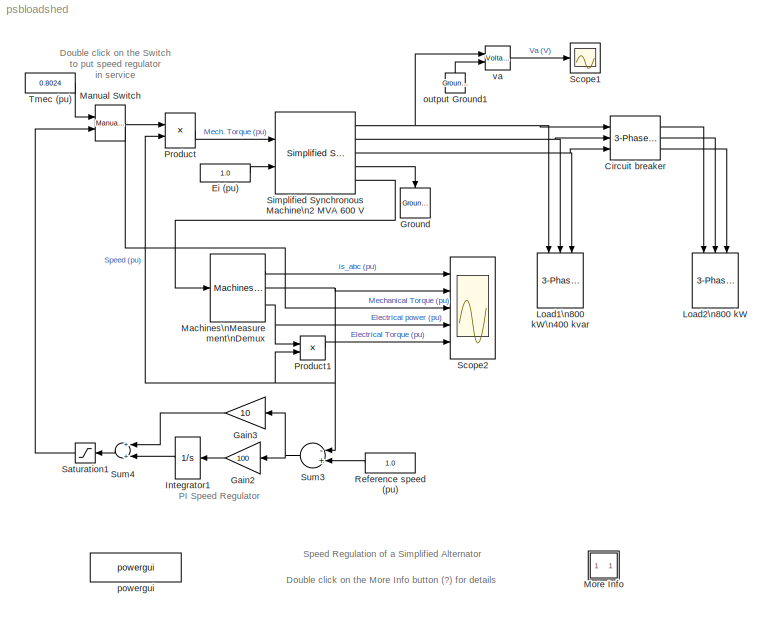
MODEL psbloadshed
KIND model
CONFIG InitFcn = powericon('psbinitsys',bdroot);
BLOCK [Reference] Circuit breaker  REF=powerlib2/Elements/3-Phase Breaker
  Cp = 0
  Ports = [3, 3]
  Ron = 1e-4
  Rp = inf
  SourceBlock = powerlib2/Elements/3-Phase Breaker
  SourceType = Three-Phase Breaker
  Ts = 0
  comext = off
  init_states = closed
  mesure = None
  sa = on
  sb = on
  sc = on
  sw_times = [ 0.2 0.7*100 ]
BLOCK [Constant] Ei (pu)
  Value = 1.0
BLOCK [Gain] Gain2
  Gain = 100
BLOCK [Gain] Gain3
  Gain = 10
BLOCK [Reference] Ground  REF=powerlib2/Connectors/Ground (input)
  Ports = [1]
  SourceBlock = powerlib2/Connectors/Ground (input)
  SourceType = Ground
  Tag = PoWeRsYsTeMbLoCk
BLOCK [Integrator] Integrator1
  InitialCondition = 0.8024
  LimitOutput = on
  LowerSaturationLimit = 0
  Ports = [1, 1]
  UpperSaturationLimit = 1
  ZeroCross = off
BLOCK [Reference] Load1\n800 kW\n400 kvar  REF=powerlib2/Elements/3-Phase\nParallel RLC Load
  P3 = 800e3
  Ports = [3]
  QC3 = 0
  QL3 = 400e3
  SourceBlock = powerlib2/Elements/3-Phase\nParallel RLC Load
  SourceType = 3-phase parallel RLC load
  Vpp = 600
  fn = 60
BLOCK [Reference] Load2\n800 kW  REF=powerlib2/Elements/3-Phase\nParallel RLC Load
  P3 = 800e3
  Ports = [3]
  QC3 = 0
  QL3 = 0
  SourceBlock = powerlib2/Elements/3-Phase\nParallel RLC Load
  SourceType = 3-phase parallel RLC load
  Vpp = 600
  fn = 60
BLOCK [Reference] Machines\nMeasurement\nDemux  REF=powerlib2/Machines/Machines\nMeasurement\nDemux
  Ports = [1, 3]
  SourceBlock = powerlib2/Machines/Machines\nMeasurement\nDemux
  SourceType = Machine measurements
  asm1 = on
  asm10 = on
  asm11 = on
  asm2 = on
  asm3 = on
  asm4 = on
  asm5 = on
  asm6 = on
  asm7 = on
  asm8 = on
  asm9 = on
  lastType = 1
  machType = Simplified synchronous
  pmsm1 = on
  pmsm2 = on
  pmsm3 = on
  pmsm4 = on
  pmsm5 = on
  pmsm6 = on
  sm1 = on
  sm10 = on
  sm11 = on
  sm115 = off
  sm12 = off
  sm13 = off
  sm14 = off
  sm2 = on
  sm3 = on
  sm4 = on
  sm5 = on
  sm6 = on
  sm7 = on
  sm8 = on
  sm9 = on
  ssm1 = on
  ssm2 = off
  ssm3 = off
  ssm4 = off
  ssm5 = on
  ssm6 = on
BLOCK [Reference] Manual Switch  REF=simulink/Signal\nRouting/Manual Switch
  Ports = [2, 1]
  SourceBlock = simulink/Signal\nRouting/Manual Switch
  SourceType = Manual Switch
  action = 0
  sw = 1
BLOCK [SubSystem] More Info
  MaskDisplay = disp('?')
  MaskIconFrame = on
  MaskIconOpaque = on
  MaskIconRotate = none
  MaskIconUnits = autoscale
  MinAlgLoopOccurrences = off
  Ports = []
  RTWSystemCode = Auto
  TreatAsAtomicUnit = off
BLOCK [Product] Product
  Ports = [2, 1]
  RndMeth = Floor
BLOCK [Product] Product1
  Inputs = */
  Ports = [2, 1]
  RndMeth = Floor
BLOCK [Constant] Reference speed (pu)
  Value = 1.0
BLOCK [Saturate] Saturation1
  LowerLimit = 0
  UpperLimit = 1
  ZeroCross = off
BLOCK [Scope] Scope1 
  DataFormat = Structure
  LimitDataPoints = off
  NumInputPorts = 1
  Ports = [1]
  TimeRange = 0.2
  YMax = 500
  YMin = -500
  ZoomMode = yonly
BLOCK [Scope] Scope2
  DataFormat = Structure
  LimitDataPoints = off
  NumInputPorts = 5
  Ports = [5]
  SampleTime = 1/60
  TimeRange = 2
  YMax = 1~2~2~1~1
  YMin = -1~1~-2~0~0
  ZoomMode = xonly
BLOCK [Reference] Simplified Synchronous Machine\n2 MVA 600 V  REF=powerlib2/Machines/Simplified Synchronous \nMachine  pu Units
  LoadFlowParameters = [2 0 0 0]
  PSBOutputType = 11110
  Ports = [2, 5]
  SourceBlock = powerlib2/Machines/Simplified Synchronous \nMachine  pu Units
  SourceType = Simplified Synchronous Machine
  Tag = PoWeRsYsTeMbLoCk
  conType = 4-wire Y
  iounits = 0
  x1 = [  2000e3, 600, 60 ]
  x2 = [ 0.6 , 0.0, 2 ]
  x3 = [ 0.0036  0.16 ]
  x4 = [0 0  0 0 0    0  0  0]
BLOCK [Sum] Sum3
  Inputs = -+
  Ports = [2, 1]
BLOCK [Sum] Sum4
  Ports = [2, 1]
BLOCK [Constant] Tmec (pu)
  Value = 0.8024
BLOCK [Reference] output Ground1  REF=powerlib2/Connectors/Ground (output)
  PSBOutputType = 1
  Ports = [0, 1]
  SourceBlock = powerlib2/Connectors/Ground (output)
  SourceType = Ground
  Tag = PoWeRsYsTeMbLoCk
BLOCK [Reference] powergui  REF=powerlib2/powergui
  DisplayStyle = off
  Frange = [0:2:500]
  FreqAxis = off
  MaxFrequency = 1000
  Ports = []
  RmsSteady = 1
  SourceBlock = powerlib2/powergui
  SourceType = PSB option menu block
  StartTime = 0.0
  Ts = 0
  Xlog = on
  Ylog = off
  ZoomFFT = on
  cycles = 1
  display = off
  echomessages = off
  frequency = 60
  frequencyindice = 1
  frequencyindicesteady = 1
  fundamental = 60
  methode = off
  save = off
  variable = ZData
BLOCK [Reference] va  REF=powerlib2/Measurements/Voltage Measurement
  OutputType = Magnitude
  PSBOutputType = 0
  PSBequivalent = 0
  PhasorSimulation = off
  Ports = [2, 1]
  SourceBlock = powerlib2/Measurements/Voltage Measurement
  SourceType = Voltage Measurement
  Tag = PoWeRsYsTeMmEaSuReMeNt
ANNOTATION (root): Speed Regulation of a Simplified Alternator
ANNOTATION (root): Double click on the Switch\nto put speed regulator\nin service\n
ANNOTATION (root): Double click on the More Info button (?) for details
ANNOTATION (root): PI Speed Regulator
ANNOTATION More Info: 1. Initializing the machine to start in steady state
ANNOTATION More Info: 2. Simulation at constant torque - No speed regulator
ANNOTATION More Info: 3. Simulation with speed regulator
ANNOTATION More Info: A three-phase, four-wire alternator rated 2000 kVA, 1600 kW, 0.8 power factor, 600 V, 1800 rpm is connected to a 1600 kW, 400 kvar inductive load.\nThe stator neutral point is grounded. The internal impedance of the generator (Zg = 0.0036 + j*0.16 pu) represents the armature winding\nresistance Ra and direct axis transient reactance X'd. The total inertia constant of the generator and prime mover ...<+523ch>
ANNOTATION More Info: Circuit Description
ANNOTATION More Info: Demonstration
ANNOTATION More Info: G. Sybille (Hydro-Quebec)
ANNOTATION More Info: Make sure that the speed regulator is not in service ( Manual Switch is in the upper position) . Start the simulation and observe signals on Scope2.\nThe three Iabc currents should start with steady-state sinusoidal waveforms. Observe that when the circuit breaker opens at t = 0.2 s, the electrical power (trace 4)\ndrops from 0.8 pu to 0.4 pu and that the machine starts to accelerate.The rate of s...<+523ch>
ANNOTATION More Info: Now double click on the Manual Switch block in order to put the speed regulator in service. Restart the simulation and observe the dynamic response of the speed\nregulator on Scope 2. Notice that in order to maintain speed at its reference value (1 pu), the speed regulator has reduced the mechanical torque to 0.4 pu.
ANNOTATION More Info: Start Simulation and observe the three machine currents on trace 1 of Scope2. If the 8 parameters defining initial conditions for the machine are left at zero or not set\ncorrectly , the simulation will not start in steady state. In order to start the simulation in steady-state you must first initialize the machine for the desired load flow. \n\nOpen the powergui and select 'Load Flow & Machine In...<+1342ch>
ANNOTATION More Info: This demonstration illustrates the use of the simplified alternator\nfor a load shedding test on a 2000 kVA, 600 V alternator.
ANNOTATION More Info: \n
LINE Circuit breaker:1 -> Load2\n800 kW:1
LINE Circuit breaker:2 -> Load2\n800 kW:2
LINE Circuit breaker:3 -> Load2\n800 kW:3
LINE Ei (pu):1 -> Simplified Synchronous Machine\n2 MVA 600 V:2
LINE Gain2:1 -> Integrator1:1
LINE Gain3:1 -> Sum4:1
LINE Integrator1:1 -> Sum4:2
LINE Machines\nMeasurement\nDemux:1 -> Scope2:1
NET Machines\nMeasurement\nDemux:2 -> Product1:2, Product:2, Scope2:2, Sum3:1
NET Machines\nMeasurement\nDemux:3 -> Product1:1, Scope2:4
NET Manual Switch:1 -> Product:1, Scope2:3
LINE Product1:1 -> Scope2:5
LINE Product:1 -> Simplified Synchronous Machine\n2 MVA 600 V:1
LINE Reference speed (pu):1 -> Sum3:2
LINE Saturation1:1 -> Manual Switch:2
NET Simplified Synchronous Machine\n2 MVA 600 V:1 -> Circuit breaker:1, Load1\n800 kW\n400 kvar:1, va:1
NET Simplified Synchronous Machine\n2 MVA 600 V:2 -> Circuit breaker:2, Load1\n800 kW\n400 kvar:2
NET Simplified Synchronous Machine\n2 MVA 600 V:3 -> Circuit breaker:3, Load1\n800 kW\n400 kvar:3
LINE Simplified Synchronous Machine\n2 MVA 600 V:4 -> Ground:1
LINE Simplified Synchronous Machine\n2 MVA 600 V:5 -> Machines\nMeasurement\nDemux:1
NET Sum3:1 -> Gain2:1, Gain3:1
LINE Sum4:1 -> Saturation1:1
LINE Tmec (pu):1 -> Manual Switch:1
LINE output Ground1:1 -> va:2
LINE va:1 -> Scope1 :1
note: NET lines group one-source signal fan-out (src -> all destinations, sorted); 1:1 wires keep LINE
